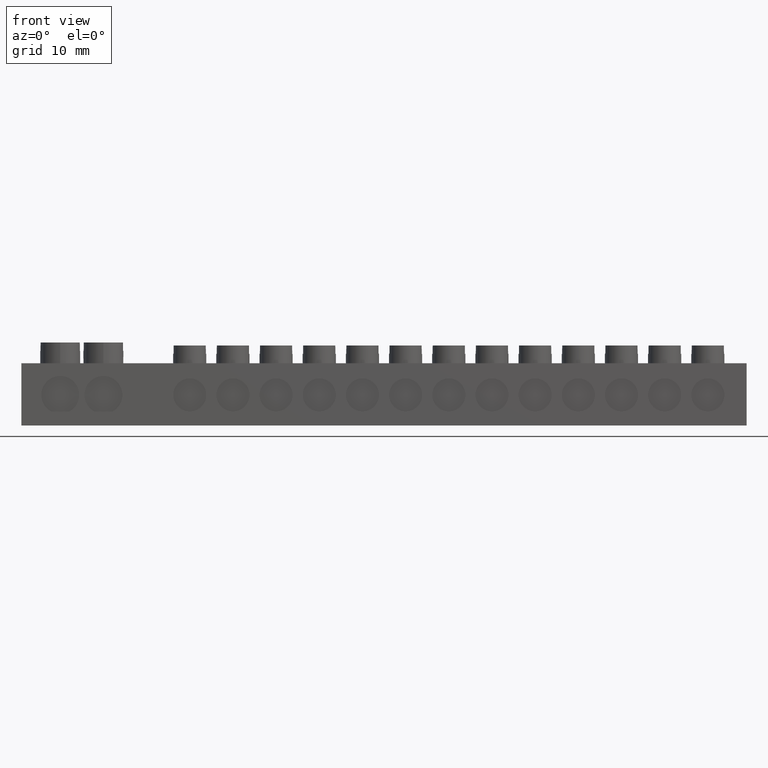
[diagram: clean part render]
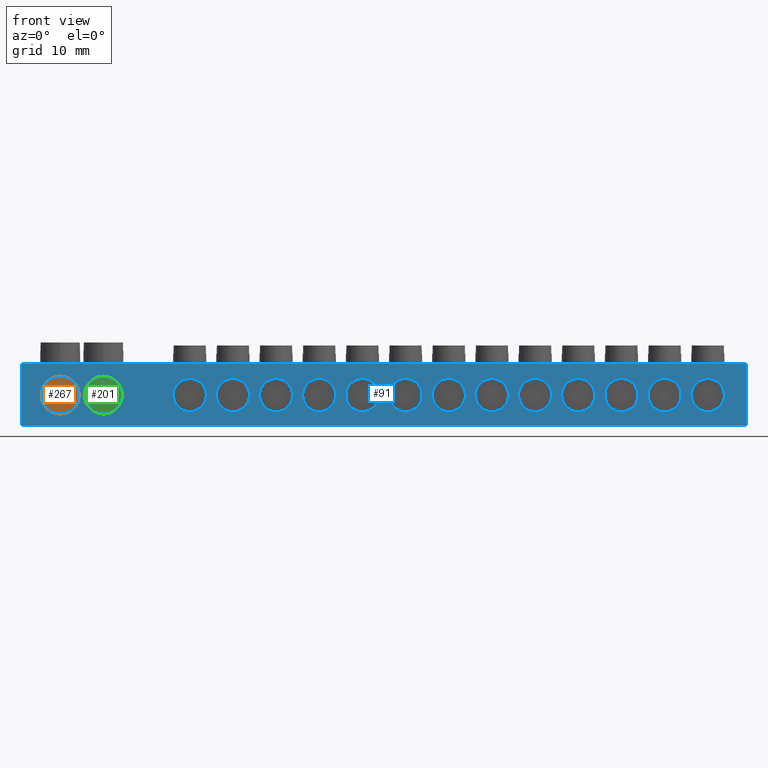
[diagram: same view with three faces highlighted in distinct colors, each labeled with its STEP entity id]
A machine part, front view with three faces highlighted in distinct colors.
Their STEP definitions:

[orange] entity #267 — the highlighted planar face has unit normal (0, -1, 0).
#267 = ADVANCED_FACE ( 'NONE', ( #5713 ), #5711, .T. ) ;
#352 = EDGE_CURVE ( 'NONE', #3519, #3563, #9379, .T. ) ;
#2890 = CIRCLE ( 'NONE', #2921, 2.749999999999998200 ) ;
#2921 = AXIS2_PLACEMENT_3D ( 'NONE', #8929, #8913, #8914 ) ;
#3450 = EDGE_CURVE ( 'NONE', #3563, #3519, #2890, .T. ) ;
#3519 = VERTEX_POINT ( 'NONE', #9056 ) ;
#3563 = VERTEX_POINT ( 'NONE', #8005 ) ;
#3770 = ORIENTED_EDGE ( 'NONE', *, *, #3450, .T. ) ;
#3780 = ORIENTED_EDGE ( 'NONE', *, *, #352, .T. ) ;
#4279 = EDGE_LOOP ( 'NONE', ( #3770, #3780 ) ) ;
#5694 = DIRECTION ( 'NONE',  ( 0.0000000000000000000, -0.0000000000000000000, -1.000000000000000000 ) ) ;
#5700 = DIRECTION ( 'NONE',  ( 0.0000000000000000000, -1.000000000000000000, 0.0000000000000000000 ) ) ;
#5711 = PLANE ( 'NONE',  #9264 ) ;
#5713 = FACE_OUTER_BOUND ( 'NONE', #4279, .T. ) ;
#5732 = CARTESIAN_POINT ( 'NONE',  ( 0.5000000000000000000, 0.5000000000000000000, 0.5000000000000000000 ) ) ;
#5892 = DIRECTION ( 'NONE',  ( -0.0000000000000000000, -1.000000000000000000, -0.0000000000000000000 ) ) ;
#5901 = DIRECTION ( 'NONE',  ( 0.0000000000000000000, 0.0000000000000000000, -1.000000000000000000 ) ) ;
#5906 = CARTESIAN_POINT ( 'NONE',  ( 5.325000000000000200, 0.5000000000000004400, 4.399999999999999500 ) ) ;
#8005 = CARTESIAN_POINT ( 'NONE',  ( 5.325000000000000200, 0.5000000000000004400, 1.650000000000001200 ) ) ;
#8913 = DIRECTION ( 'NONE',  ( -0.0000000000000000000, -1.000000000000000000, -0.0000000000000000000 ) ) ;
#8914 = DIRECTION ( 'NONE',  ( 0.0000000000000000000, 0.0000000000000000000, -1.000000000000000000 ) ) ;
#8929 = CARTESIAN_POINT ( 'NONE',  ( 5.325000000000000200, 0.5000000000000004400, 4.399999999999999500 ) ) ;
#9056 = CARTESIAN_POINT ( 'NONE',  ( 5.325000000000000200, 0.5000000000000004400, 7.149999999999997700 ) ) ;
#9264 = AXIS2_PLACEMENT_3D ( 'NONE', #5732, #5700, #5694 ) ;
#9346 = AXIS2_PLACEMENT_3D ( 'NONE', #5906, #5892, #5901 ) ;
#9379 = CIRCLE ( 'NONE', #9346, 2.749999999999998200 ) ;

[blue] entity #91 — the highlighted planar face has unit normal (0, 1, 0).
#91 = ADVANCED_FACE ( 'NONE', ( #1363, #1327, #1376, #1339, #1332, #1343, #1344, #1367, #1325, #1375, #1366, #1369, #1338, #1377, #1323, #1324 ), #1346, .F. ) ;
#350 = EDGE_CURVE ( 'NONE', #3523, #3564, #9347, .T. ) ;
#356 = EDGE_CURVE ( 'NONE', #537, #564, #9330, .T. ) ;
#373 = EDGE_CURVE ( 'NONE', #3548, #3512, #9324, .T. ) ;
#375 = EDGE_CURVE ( 'NONE', #3526, #3525, #9359, .T. ) ;
#379 = EDGE_CURVE ( 'NONE', #3534, #472, #9371, .T. ) ;
#383 = EDGE_CURVE ( 'NONE', #550, #569, #9376, .T. ) ;
#389 = EDGE_CURVE ( 'NONE', #561, #467, #9361, .T. ) ;
#398 = EDGE_CURVE ( 'NONE', #3514, #3517, #9402, .T. ) ;
#402 = EDGE_CURVE ( 'NONE', #534, #522, #9387, .T. ) ;
#416 = EDGE_CURVE ( 'NONE', #512, #471, #9396, .T. ) ;
#434 = EDGE_CURVE ( 'NONE', #538, #453, #9425, .T. ) ;
#436 = EDGE_CURVE ( 'NONE', #504, #456, #9478, .T. ) ;
#440 = EDGE_CURVE ( 'NONE', #455, #501, #9486, .T. ) ;
#453 = VERTEX_POINT ( 'NONE', #6214 ) ;
#455 = VERTEX_POINT ( 'NONE', #6202 ) ;
#456 = VERTEX_POINT ( 'NONE', #6215 ) ;
#457 = VERTEX_POINT ( 'NONE', #6198 ) ;
#459 = VERTEX_POINT ( 'NONE', #6203 ) ;
#467 = VERTEX_POINT ( 'NONE', #6218 ) ;
#471 = VERTEX_POINT ( 'NONE', #6235 ) ;
#472 = VERTEX_POINT ( 'NONE', #6237 ) ;
#475 = VERTEX_POINT ( 'NONE', #6239 ) ;
#501 = VERTEX_POINT ( 'NONE', #9140 ) ;
#504 = VERTEX_POINT ( 'NONE', #9119 ) ;
#512 = VERTEX_POINT ( 'NONE', #9125 ) ;
#522 = VERTEX_POINT ( 'NONE', #9127 ) ;
#532 = VERTEX_POINT ( 'NONE', #9147 ) ;
#534 = VERTEX_POINT ( 'NONE', #9158 ) ;
#535 = VERTEX_POINT ( 'NONE', #8031 ) ;
#537 = VERTEX_POINT ( 'NONE', #8060 ) ;
#538 = VERTEX_POINT ( 'NONE', #8036 ) ;
#550 = VERTEX_POINT ( 'NONE', #8048 ) ;
#559 = VERTEX_POINT ( 'NONE', #8073 ) ;
#561 = VERTEX_POINT ( 'NONE', #8029 ) ;
#564 = VERTEX_POINT ( 'NONE', #8074 ) ;
#569 = VERTEX_POINT ( 'NONE', #8067 ) ;
#574 = VERTEX_POINT ( 'NONE', #8030 ) ;
#1323 = FACE_BOUND ( 'NONE', #4310, .T. ) ;
#1324 = FACE_BOUND ( 'NONE', #4295, .T. ) ;
#1325 = FACE_BOUND ( 'NONE', #4386, .T. ) ;
#1327 = FACE_BOUND ( 'NONE', #4309, .T. ) ;
#1332 = FACE_BOUND ( 'NONE', #4353, .T. ) ;
#1338 = FACE_BOUND ( 'NONE', #4323, .T. ) ;
#1339 = FACE_BOUND ( 'NONE', #4316, .T. ) ;
#1343 = FACE_BOUND ( 'NONE', #4391, .T. ) ;
#1344 = FACE_BOUND ( 'NONE', #4381, .T. ) ;
#1346 = PLANE ( 'NONE',  #9073 ) ;
#1347 = CARTESIAN_POINT ( 'NONE',  ( 0.0000000000000000000, 0.0000000000000000000, 9.000000000000001800 ) ) ;
#1348 = DIRECTION ( 'NONE',  ( 0.0000000000000000000, 1.000000000000000000, 0.0000000000000000000 ) ) ;
#1354 = DIRECTION ( 'NONE',  ( 0.0000000000000000000, -0.0000000000000000000, 1.000000000000000000 ) ) ;
#1363 = FACE_OUTER_BOUND ( 'NONE', #4364, .T. ) ;
#1366 = FACE_BOUND ( 'NONE', #4389, .T. ) ;
#1367 = FACE_BOUND ( 'NONE', #4393, .T. ) ;
#1369 = FACE_BOUND ( 'NONE', #4311, .T. ) ;
#1375 = FACE_BOUND ( 'NONE', #4355, .T. ) ;
#1376 = FACE_BOUND ( 'NONE', #4308, .T. ) ;
#1377 = FACE_BOUND ( 'NONE', #4366, .T. ) ;
#1762 = VERTEX_POINT ( 'NONE', #8394 ) ;
#2167 = AXIS2_PLACEMENT_3D ( 'NONE', #9652, #9655, #9645 ) ;
#2180 = VECTOR ( 'NONE', #9647, 1000.000000000000000 ) ;
#2183 = CIRCLE ( 'NONE', #2167, 2.400000000000000800 ) ;
#2198 = AXIS2_PLACEMENT_3D ( 'NONE', #9732, #9726, #9727 ) ;
#2200 = CIRCLE ( 'NONE', #2208, 2.400000000000000800 ) ;
#2207 = VECTOR ( 'NONE', #9759, 1000.000000000000000 ) ;
#2208 = AXIS2_PLACEMENT_3D ( 'NONE', #9718, #9705, #9722 ) ;
#2211 = CIRCLE ( 'NONE', #2243, 2.400000000000000800 ) ;
#2212 = CIRCLE ( 'NONE', #2244, 2.400000000000000800 ) ;
#2216 = CIRCLE ( 'NONE', #2217, 2.400000000000000800 ) ;
#2217 = AXIS2_PLACEMENT_3D ( 'NONE', #9773, #9774, #9775 ) ;
#2222 = AXIS2_PLACEMENT_3D ( 'NONE', #9719, #9721, #9708 ) ;
#2223 = CIRCLE ( 'NONE', #2225, 2.400000000000000800 ) ;
#2225 = AXIS2_PLACEMENT_3D ( 'NONE', #9714, #9703, #9696 ) ;
#2232 = AXIS2_PLACEMENT_3D ( 'NONE', #9739, #9740, #9742 ) ;
#2233 = VECTOR ( 'NONE', #9725, 1000.000000000000000 ) ;
#2236 = CIRCLE ( 'NONE', #2198, 2.400000000000000800 ) ;
#2243 = AXIS2_PLACEMENT_3D ( 'NONE', #9689, #9673, #9688 ) ;
#2244 = AXIS2_PLACEMENT_3D ( 'NONE', #9770, #9766, #9771 ) ;
#2246 = CIRCLE ( 'NONE', #2232, 2.400000000000000800 ) ;
#2249 = CIRCLE ( 'NONE', #2222, 2.400000000000000800 ) ;
#2251 = VECTOR ( 'NONE', #9815, 1000.000000000000000 ) ;
#2266 = AXIS2_PLACEMENT_3D ( 'NONE', #9811, #9799, #9785 ) ;
#2268 = AXIS2_PLACEMENT_3D ( 'NONE', #9828, #9840, #9830 ) ;
#2271 = CIRCLE ( 'NONE', #2277, 2.400000000000000800 ) ;
#2276 = AXIS2_PLACEMENT_3D ( 'NONE', #9796, #9788, #9806 ) ;
#2277 = AXIS2_PLACEMENT_3D ( 'NONE', #9825, #9833, #9838 ) ;
#2280 = AXIS2_PLACEMENT_3D ( 'NONE', #9818, #9819, #9814 ) ;
#2285 = CIRCLE ( 'NONE', #2266, 2.749999999999998200 ) ;
#2286 = CIRCLE ( 'NONE', #2280, 2.400000000000000800 ) ;
#2293 = CIRCLE ( 'NONE', #2276, 2.400000000000000800 ) ;
#2303 = AXIS2_PLACEMENT_3D ( 'NONE', #9807, #9782, #9813 ) ;
#2306 = CIRCLE ( 'NONE', #2303, 2.400000000000000800 ) ;
#2307 = CIRCLE ( 'NONE', #2268, 2.749999999999998200 ) ;
#3311 = CIRCLE ( 'NONE', #3324, 2.400000000000000800 ) ;
#3312 = CIRCLE ( 'NONE', #3330, 2.400000000000000800 ) ;
#3324 = AXIS2_PLACEMENT_3D ( 'NONE', #6656, #6683, #6672 ) ;
#3330 = AXIS2_PLACEMENT_3D ( 'NONE', #6658, #6670, #6659 ) ;
#3512 = VERTEX_POINT ( 'NONE', #9063 ) ;
#3514 = VERTEX_POINT ( 'NONE', #9065 ) ;
#3517 = VERTEX_POINT ( 'NONE', #9061 ) ;
#3523 = VERTEX_POINT ( 'NONE', #8573 ) ;
#3525 = VERTEX_POINT ( 'NONE', #8007 ) ;
#3526 = VERTEX_POINT ( 'NONE', #7992 ) ;
#3534 = VERTEX_POINT ( 'NONE', #8001 ) ;
#3548 = VERTEX_POINT ( 'NONE', #7964 ) ;
#3564 = VERTEX_POINT ( 'NONE', #8003 ) ;
#3848 = ORIENTED_EDGE ( 'NONE', *, *, #6991, .F. ) ;
#3849 = ORIENTED_EDGE ( 'NONE', *, *, #373, .F. ) ;
#3850 = ORIENTED_EDGE ( 'NONE', *, *, #7003, .F. ) ;
#3852 = ORIENTED_EDGE ( 'NONE', *, *, #6999, .F. ) ;
#3853 = ORIENTED_EDGE ( 'NONE', *, *, #6994, .F. ) ;
#3854 = ORIENTED_EDGE ( 'NONE', *, *, #6981, .F. ) ;
#3892 = ORIENTED_EDGE ( 'NONE', *, *, #5205, .F. ) ;
#3893 = ORIENTED_EDGE ( 'NONE', *, *, #7011, .F. ) ;
#3895 = ORIENTED_EDGE ( 'NONE', *, *, #5203, .F. ) ;
#3897 = ORIENTED_EDGE ( 'NONE', *, *, #389, .F. ) ;
#3903 = ORIENTED_EDGE ( 'NONE', *, *, #356, .F. ) ;
#3904 = ORIENTED_EDGE ( 'NONE', *, *, #6966, .F. ) ;
#3909 = ORIENTED_EDGE ( 'NONE', *, *, #7023, .F. ) ;
#3910 = ORIENTED_EDGE ( 'NONE', *, *, #6967, .F. ) ;
#3911 = ORIENTED_EDGE ( 'NONE', *, *, #7016, .F. ) ;
#3915 = ORIENTED_EDGE ( 'NONE', *, *, #375, .F. ) ;
#3916 = ORIENTED_EDGE ( 'NONE', *, *, #402, .F. ) ;
#3921 = ORIENTED_EDGE ( 'NONE', *, *, #350, .F. ) ;
#3924 = ORIENTED_EDGE ( 'NONE', *, *, #440, .F. ) ;
#3925 = ORIENTED_EDGE ( 'NONE', *, *, #7012, .F. ) ;
#3927 = ORIENTED_EDGE ( 'NONE', *, *, #7018, .F. ) ;
#3928 = ORIENTED_EDGE ( 'NONE', *, *, #383, .F. ) ;
#3930 = ORIENTED_EDGE ( 'NONE', *, *, #6977, .F. ) ;
#3932 = ORIENTED_EDGE ( 'NONE', *, *, #436, .F. ) ;
#3933 = ORIENTED_EDGE ( 'NONE', *, *, #398, .F. ) ;
#3934 = ORIENTED_EDGE ( 'NONE', *, *, #6984, .F. ) ;
#3937 = ORIENTED_EDGE ( 'NONE', *, *, #379, .F. ) ;
#3938 = ORIENTED_EDGE ( 'NONE', *, *, #416, .F. ) ;
#3939 = ORIENTED_EDGE ( 'NONE', *, *, #6975, .F. ) ;
#3940 = ORIENTED_EDGE ( 'NONE', *, *, #7024, .F. ) ;
#3943 = ORIENTED_EDGE ( 'NONE', *, *, #434, .F. ) ;
#3944 = ORIENTED_EDGE ( 'NONE', *, *, #7005, .F. ) ;
#3946 = ORIENTED_EDGE ( 'NONE', *, *, #6978, .F. ) ;
#3949 = ORIENTED_EDGE ( 'NONE', *, *, #7017, .F. ) ;
#4295 = EDGE_LOOP ( 'NONE', ( #3925, #3916 ) ) ;
#4308 = EDGE_LOOP ( 'NONE', ( #3911, #3933 ) ) ;
#4309 = EDGE_LOOP ( 'NONE', ( #3940, #3915 ) ) ;
#4310 = EDGE_LOOP ( 'NONE', ( #3930, #3895 ) ) ;
#4311 = EDGE_LOOP ( 'NONE', ( #3909, #3924 ) ) ;
#4316 = EDGE_LOOP ( 'NONE', ( #3853, #3921 ) ) ;
#4323 = EDGE_LOOP ( 'NONE', ( #3910, #3943 ) ) ;
#4353 = EDGE_LOOP ( 'NONE', ( #3934, #3849 ) ) ;
#4355 = EDGE_LOOP ( 'NONE', ( #3944, #3932 ) ) ;
#4364 = EDGE_LOOP ( 'NONE', ( #3949, #3904, #3946, #3852 ) ) ;
#4366 = EDGE_LOOP ( 'NONE', ( #3939, #3892 ) ) ;
#4381 = EDGE_LOOP ( 'NONE', ( #3893, #3903 ) ) ;
#4386 = EDGE_LOOP ( 'NONE', ( #3850, #3897 ) ) ;
#4389 = EDGE_LOOP ( 'NONE', ( #3854, #3938 ) ) ;
#4391 = EDGE_LOOP ( 'NONE', ( #3848, #3937 ) ) ;
#4393 = EDGE_LOOP ( 'NONE', ( #3927, #3928 ) ) ;
#5203 = EDGE_CURVE ( 'NONE', #559, #535, #3311, .T. ) ;
#5205 = EDGE_CURVE ( 'NONE', #532, #574, #3312, .T. ) ;
#5886 = DIRECTION ( 'NONE',  ( 0.0000000000000000000, 0.0000000000000000000, -1.000000000000000000 ) ) ;
#5888 = DIRECTION ( 'NONE',  ( 0.0000000000000000000, 0.0000000000000000000, -1.000000000000000000 ) ) ;
#5891 = CARTESIAN_POINT ( 'NONE',  ( 99.07500000000001700, 0.0000000000000000000, 4.399999999999999500 ) ) ;
#5897 = DIRECTION ( 'NONE',  ( -0.0000000000000000000, -1.000000000000000000, -0.0000000000000000000 ) ) ;
#5902 = CARTESIAN_POINT ( 'NONE',  ( 80.32500000000000300, 0.0000000000000000000, 4.399999999999955900 ) ) ;
#5907 = DIRECTION ( 'NONE',  ( -0.0000000000000000000, -1.000000000000000000, -0.0000000000000000000 ) ) ;
#5982 = DIRECTION ( 'NONE',  ( 0.0000000000000000000, 0.0000000000000000000, -1.000000000000000000 ) ) ;
#5986 = DIRECTION ( 'NONE',  ( -0.0000000000000000000, -1.000000000000000000, -0.0000000000000000000 ) ) ;
#5991 = DIRECTION ( 'NONE',  ( -0.0000000000000000000, -1.000000000000000000, -0.0000000000000000000 ) ) ;
#5992 = DIRECTION ( 'NONE',  ( -0.0000000000000000000, -1.000000000000000000, -0.0000000000000000000 ) ) ;
#5993 = DIRECTION ( 'NONE',  ( 0.0000000000000000000, 0.0000000000000000000, -1.000000000000000000 ) ) ;
#6001 = CARTESIAN_POINT ( 'NONE',  ( 5.325000000000000200, 0.0000000000000000000, 4.399999999999999500 ) ) ;
#6005 = CARTESIAN_POINT ( 'NONE',  ( 86.57500000000001700, 0.0000000000000000000, 4.399999999999970200 ) ) ;
#6006 = DIRECTION ( 'NONE',  ( 0.0000000000000000000, 0.0000000000000000000, -1.000000000000000000 ) ) ;
#6007 = CARTESIAN_POINT ( 'NONE',  ( 74.07500000000001700, 0.0000000000000000000, 4.399999999999940800 ) ) ;
#6008 = DIRECTION ( 'NONE',  ( -0.0000000000000000000, -1.000000000000000000, -0.0000000000000000000 ) ) ;
#6012 = DIRECTION ( 'NONE',  ( 0.0000000000000000000, 0.0000000000000000000, -1.000000000000000000 ) ) ;
#6016 = CARTESIAN_POINT ( 'NONE',  ( 92.82500000000001700, 0.0000000000000000000, 4.399999999999984400 ) ) ;
#6028 = DIRECTION ( 'NONE',  ( -0.0000000000000000000, -1.000000000000000000, -0.0000000000000000000 ) ) ;
#6048 = CARTESIAN_POINT ( 'NONE',  ( 67.82500000000001700, 0.0000000000000000000, 4.399999999999926600 ) ) ;
#6049 = DIRECTION ( 'NONE',  ( 0.0000000000000000000, 0.0000000000000000000, -1.000000000000000000 ) ) ;
#6063 = DIRECTION ( 'NONE',  ( -0.0000000000000000000, -1.000000000000000000, -0.0000000000000000000 ) ) ;
#6065 = CARTESIAN_POINT ( 'NONE',  ( 11.57500000000000300, 0.0000000000000000000, 4.399999999999999500 ) ) ;
#6066 = DIRECTION ( 'NONE',  ( 0.0000000000000000000, 0.0000000000000000000, -1.000000000000000000 ) ) ;
#6084 = DIRECTION ( 'NONE',  ( -0.0000000000000000000, -1.000000000000000000, -0.0000000000000000000 ) ) ;
#6090 = CARTESIAN_POINT ( 'NONE',  ( 24.07500000000002800, 0.0000000000000000000, 4.399999999999825400 ) ) ;
#6092 = DIRECTION ( 'NONE',  ( 0.0000000000000000000, 0.0000000000000000000, -1.000000000000000000 ) ) ;
#6109 = CARTESIAN_POINT ( 'NONE',  ( 55.32500000000001700, 0.0000000000000000000, 4.399999999999898200 ) ) ;
#6139 = DIRECTION ( 'NONE',  ( -0.0000000000000000000, -1.000000000000000000, -0.0000000000000000000 ) ) ;
#6142 = DIRECTION ( 'NONE',  ( 0.0000000000000000000, 0.0000000000000000000, -1.000000000000000000 ) ) ;
#6161 = CARTESIAN_POINT ( 'NONE',  ( 42.82500000000002400, 0.0000000000000000000, 4.399999999999868000 ) ) ;
#6170 = DIRECTION ( 'NONE',  ( 0.0000000000000000000, 0.0000000000000000000, -1.000000000000000000 ) ) ;
#6176 = DIRECTION ( 'NONE',  ( 0.0000000000000000000, 0.0000000000000000000, -1.000000000000000000 ) ) ;
#6178 = CARTESIAN_POINT ( 'NONE',  ( 49.07500000000003100, 0.0000000000000000000, 4.399999999999883100 ) ) ;
#6179 = DIRECTION ( 'NONE',  ( -0.0000000000000000000, -1.000000000000000000, -0.0000000000000000000 ) ) ;
#6187 = DIRECTION ( 'NONE',  ( -0.0000000000000000000, -1.000000000000000000, -0.0000000000000000000 ) ) ;
#6192 = CARTESIAN_POINT ( 'NONE',  ( 61.57500000000001700, 0.0000000000000000000, 4.399999999999911500 ) ) ;
#6193 = DIRECTION ( 'NONE',  ( -0.0000000000000000000, -1.000000000000000000, -0.0000000000000000000 ) ) ;
#6198 = CARTESIAN_POINT ( 'NONE',  ( 104.7000000000000000, 0.0000000000000000000, 0.0000000000000000000 ) ) ;
#6202 = CARTESIAN_POINT ( 'NONE',  ( 49.07500000000003100, 0.0000000000000000000, 6.799999999999884400 ) ) ;
#6203 = CARTESIAN_POINT ( 'NONE',  ( -0.2999999999999999900, 0.0000000000000000000, 0.0000000000000000000 ) ) ;
#6214 = CARTESIAN_POINT ( 'NONE',  ( 42.82500000000002400, 0.0000000000000000000, 1.999999999999867700 ) ) ;
#6215 = CARTESIAN_POINT ( 'NONE',  ( 61.57500000000001700, 0.0000000000000000000, 1.999999999999911200 ) ) ;
#6218 = CARTESIAN_POINT ( 'NONE',  ( 67.82500000000001700, 0.0000000000000000000, 1.999999999999925800 ) ) ;
#6235 = CARTESIAN_POINT ( 'NONE',  ( 55.32500000000001700, 0.0000000000000000000, 1.999999999999897200 ) ) ;
#6237 = CARTESIAN_POINT ( 'NONE',  ( 86.57500000000001700, 0.0000000000000000000, 1.999999999999969400 ) ) ;
#6239 = CARTESIAN_POINT ( 'NONE',  ( -0.2999999999999999900, 0.0000000000000000000, 9.000000000000001800 ) ) ;
#6241 = DIRECTION ( 'NONE',  ( 0.0000000000000000000, 0.0000000000000000000, -1.000000000000000000 ) ) ;
#6656 = CARTESIAN_POINT ( 'NONE',  ( 30.32500000000003100, 0.0000000000000000000, 4.399999999999839600 ) ) ;
#6658 = CARTESIAN_POINT ( 'NONE',  ( 36.57500000000002400, 0.0000000000000000000, 4.399999999999853800 ) ) ;
#6659 = DIRECTION ( 'NONE',  ( 0.0000000000000000000, 0.0000000000000000000, -1.000000000000000000 ) ) ;
#6670 = DIRECTION ( 'NONE',  ( -0.0000000000000000000, -1.000000000000000000, -0.0000000000000000000 ) ) ;
#6672 = DIRECTION ( 'NONE',  ( 0.0000000000000000000, 0.0000000000000000000, -1.000000000000000000 ) ) ;
#6683 = DIRECTION ( 'NONE',  ( -0.0000000000000000000, -1.000000000000000000, -0.0000000000000000000 ) ) ;
#6966 = EDGE_CURVE ( 'NONE', #475, #1762, #9663, .T. ) ;
#6967 = EDGE_CURVE ( 'NONE', #453, #538, #2183, .T. ) ;
#6975 = EDGE_CURVE ( 'NONE', #574, #532, #2211, .T. ) ;
#6977 = EDGE_CURVE ( 'NONE', #535, #559, #2249, .T. ) ;
#6978 = EDGE_CURVE ( 'NONE', #459, #475, #9691, .T. ) ;
#6981 = EDGE_CURVE ( 'NONE', #471, #512, #2223, .T. ) ;
#6984 = EDGE_CURVE ( 'NONE', #3512, #3548, #2200, .T. ) ;
#6991 = EDGE_CURVE ( 'NONE', #472, #3534, #2236, .T. ) ;
#6994 = EDGE_CURVE ( 'NONE', #3564, #3523, #2246, .T. ) ;
#6999 = EDGE_CURVE ( 'NONE', #457, #459, #9753, .T. ) ;
#7003 = EDGE_CURVE ( 'NONE', #467, #561, #2212, .T. ) ;
#7005 = EDGE_CURVE ( 'NONE', #456, #504, #2216, .T. ) ;
#7011 = EDGE_CURVE ( 'NONE', #564, #537, #2293, .T. ) ;
#7012 = EDGE_CURVE ( 'NONE', #522, #534, #2306, .T. ) ;
#7016 = EDGE_CURVE ( 'NONE', #3517, #3514, #2285, .T. ) ;
#7017 = EDGE_CURVE ( 'NONE', #1762, #457, #9790, .T. ) ;
#7018 = EDGE_CURVE ( 'NONE', #569, #550, #2286, .T. ) ;
#7023 = EDGE_CURVE ( 'NONE', #501, #455, #2271, .T. ) ;
#7024 = EDGE_CURVE ( 'NONE', #3525, #3526, #2307, .T. ) ;
#7964 = CARTESIAN_POINT ( 'NONE',  ( 92.82500000000001700, 0.0000000000000000000, 6.799999999999984700 ) ) ;
#7992 = CARTESIAN_POINT ( 'NONE',  ( 5.325000000000000200, 0.0000000000000000000, 7.149999999999997700 ) ) ;
#8001 = CARTESIAN_POINT ( 'NONE',  ( 86.57500000000001700, 0.0000000000000000000, 6.799999999999971400 ) ) ;
#8003 = CARTESIAN_POINT ( 'NONE',  ( 99.07500000000001700, 0.0000000000000000000, 1.999999999999998700 ) ) ;
#8007 = CARTESIAN_POINT ( 'NONE',  ( 5.325000000000000200, 0.0000000000000000000, 1.650000000000001200 ) ) ;
#8029 = CARTESIAN_POINT ( 'NONE',  ( 67.82500000000001700, 0.0000000000000000000, 6.799999999999927900 ) ) ;
#8030 = CARTESIAN_POINT ( 'NONE',  ( 36.57500000000002400, 0.0000000000000000000, 1.999999999999853000 ) ) ;
#8031 = CARTESIAN_POINT ( 'NONE',  ( 30.32500000000003100, 0.0000000000000000000, 1.999999999999839200 ) ) ;
#8036 = CARTESIAN_POINT ( 'NONE',  ( 42.82500000000002400, 0.0000000000000000000, 6.799999999999868400 ) ) ;
#8048 = CARTESIAN_POINT ( 'NONE',  ( 74.07500000000001700, 0.0000000000000000000, 6.799999999999941200 ) ) ;
#8060 = CARTESIAN_POINT ( 'NONE',  ( 80.32500000000000300, 0.0000000000000000000, 6.799999999999957200 ) ) ;
#8067 = CARTESIAN_POINT ( 'NONE',  ( 74.07500000000001700, 0.0000000000000000000, 1.999999999999940700 ) ) ;
#8073 = CARTESIAN_POINT ( 'NONE',  ( 30.32500000000003100, 0.0000000000000000000, 6.799999999999840800 ) ) ;
#8074 = CARTESIAN_POINT ( 'NONE',  ( 80.32500000000000300, 0.0000000000000000000, 1.999999999999955400 ) ) ;
#8394 = CARTESIAN_POINT ( 'NONE',  ( 104.7000000000000000, 0.0000000000000000000, 9.000000000000001800 ) ) ;
#8573 = CARTESIAN_POINT ( 'NONE',  ( 99.07500000000001700, 0.0000000000000000000, 6.800000000000000700 ) ) ;
#9061 = CARTESIAN_POINT ( 'NONE',  ( 11.57500000000000300, 0.0000000000000000000, 1.650000000000001200 ) ) ;
#9063 = CARTESIAN_POINT ( 'NONE',  ( 92.82500000000001700, 0.0000000000000000000, 1.999999999999984000 ) ) ;
#9065 = CARTESIAN_POINT ( 'NONE',  ( 11.57500000000000300, 0.0000000000000000000, 7.149999999999997700 ) ) ;
#9073 = AXIS2_PLACEMENT_3D ( 'NONE', #1347, #1348, #1354 ) ;
#9119 = CARTESIAN_POINT ( 'NONE',  ( 61.57500000000001700, 0.0000000000000000000, 6.799999999999911900 ) ) ;
#9125 = CARTESIAN_POINT ( 'NONE',  ( 55.32500000000001700, 0.0000000000000000000, 6.799999999999898600 ) ) ;
#9127 = CARTESIAN_POINT ( 'NONE',  ( 24.07500000000002800, 0.0000000000000000000, 1.999999999999824400 ) ) ;
#9140 = CARTESIAN_POINT ( 'NONE',  ( 49.07500000000003100, 0.0000000000000000000, 1.999999999999882500 ) ) ;
#9147 = CARTESIAN_POINT ( 'NONE',  ( 36.57500000000002400, 0.0000000000000000000, 6.799999999999855000 ) ) ;
#9158 = CARTESIAN_POINT ( 'NONE',  ( 24.07500000000002800, 0.0000000000000000000, 6.799999999999824900 ) ) ;
#9324 = CIRCLE ( 'NONE', #9327, 2.400000000000000800 ) ;
#9327 = AXIS2_PLACEMENT_3D ( 'NONE', #6016, #5986, #5982 ) ;
#9329 = AXIS2_PLACEMENT_3D ( 'NONE', #6005, #5992, #6006 ) ;
#9330 = CIRCLE ( 'NONE', #9345, 2.400000000000000800 ) ;
#9337 = AXIS2_PLACEMENT_3D ( 'NONE', #6001, #5991, #5993 ) ;
#9343 = AXIS2_PLACEMENT_3D ( 'NONE', #5891, #5897, #5886 ) ;
#9345 = AXIS2_PLACEMENT_3D ( 'NONE', #5902, #5907, #5888 ) ;
#9347 = CIRCLE ( 'NONE', #9343, 2.400000000000000800 ) ;
#9356 = AXIS2_PLACEMENT_3D ( 'NONE', #6007, #6008, #6012 ) ;
#9359 = CIRCLE ( 'NONE', #9337, 2.749999999999998200 ) ;
#9361 = CIRCLE ( 'NONE', #9364, 2.400000000000000800 ) ;
#9364 = AXIS2_PLACEMENT_3D ( 'NONE', #6048, #6028, #6049 ) ;
#9371 = CIRCLE ( 'NONE', #9329, 2.400000000000000800 ) ;
#9376 = CIRCLE ( 'NONE', #9356, 2.400000000000000800 ) ;
#9387 = CIRCLE ( 'NONE', #9398, 2.400000000000000800 ) ;
#9396 = CIRCLE ( 'NONE', #9419, 2.400000000000000800 ) ;
#9398 = AXIS2_PLACEMENT_3D ( 'NONE', #6090, #6084, #6092 ) ;
#9402 = CIRCLE ( 'NONE', #9447, 2.749999999999998200 ) ;
#9417 = AXIS2_PLACEMENT_3D ( 'NONE', #6161, #6187, #6176 ) ;
#9419 = AXIS2_PLACEMENT_3D ( 'NONE', #6109, #6139, #6142 ) ;
#9425 = CIRCLE ( 'NONE', #9417, 2.400000000000000800 ) ;
#9447 = AXIS2_PLACEMENT_3D ( 'NONE', #6065, #6063, #6066 ) ;
#9456 = AXIS2_PLACEMENT_3D ( 'NONE', #6192, #6193, #6170 ) ;
#9469 = AXIS2_PLACEMENT_3D ( 'NONE', #6178, #6179, #6241 ) ;
#9478 = CIRCLE ( 'NONE', #9456, 2.400000000000000800 ) ;
#9486 = CIRCLE ( 'NONE', #9469, 2.400000000000000800 ) ;
#9645 = DIRECTION ( 'NONE',  ( 0.0000000000000000000, 0.0000000000000000000, -1.000000000000000000 ) ) ;
#9646 = CARTESIAN_POINT ( 'NONE',  ( 0.0000000000000000000, 0.0000000000000000000, 9.000000000000001800 ) ) ;
#9647 = DIRECTION ( 'NONE',  ( 1.000000000000000000, 0.0000000000000000000, -0.0000000000000000000 ) ) ;
#9652 = CARTESIAN_POINT ( 'NONE',  ( 42.82500000000002400, 0.0000000000000000000, 4.399999999999868000 ) ) ;
#9655 = DIRECTION ( 'NONE',  ( -0.0000000000000000000, -1.000000000000000000, -0.0000000000000000000 ) ) ;
#9663 = LINE ( 'NONE', #9646, #2180 ) ;
#9673 = DIRECTION ( 'NONE',  ( -0.0000000000000000000, -1.000000000000000000, -0.0000000000000000000 ) ) ;
#9678 = CARTESIAN_POINT ( 'NONE',  ( -0.2999999999999999900, 0.0000000000000000000, 9.000000000000001800 ) ) ;
#9688 = DIRECTION ( 'NONE',  ( 0.0000000000000000000, 0.0000000000000000000, -1.000000000000000000 ) ) ;
#9689 = CARTESIAN_POINT ( 'NONE',  ( 36.57500000000002400, 0.0000000000000000000, 4.399999999999853800 ) ) ;
#9691 = LINE ( 'NONE', #9678, #2233 ) ;
#9696 = DIRECTION ( 'NONE',  ( 0.0000000000000000000, 0.0000000000000000000, -1.000000000000000000 ) ) ;
#9703 = DIRECTION ( 'NONE',  ( -0.0000000000000000000, -1.000000000000000000, -0.0000000000000000000 ) ) ;
#9705 = DIRECTION ( 'NONE',  ( -0.0000000000000000000, -1.000000000000000000, -0.0000000000000000000 ) ) ;
#9708 = DIRECTION ( 'NONE',  ( 0.0000000000000000000, 0.0000000000000000000, -1.000000000000000000 ) ) ;
#9714 = CARTESIAN_POINT ( 'NONE',  ( 55.32500000000001700, 0.0000000000000000000, 4.399999999999898200 ) ) ;
#9718 = CARTESIAN_POINT ( 'NONE',  ( 92.82500000000001700, 0.0000000000000000000, 4.399999999999984400 ) ) ;
#9719 = CARTESIAN_POINT ( 'NONE',  ( 30.32500000000003100, 0.0000000000000000000, 4.399999999999839600 ) ) ;
#9721 = DIRECTION ( 'NONE',  ( -0.0000000000000000000, -1.000000000000000000, -0.0000000000000000000 ) ) ;
#9722 = DIRECTION ( 'NONE',  ( 0.0000000000000000000, 0.0000000000000000000, -1.000000000000000000 ) ) ;
#9725 = DIRECTION ( 'NONE',  ( 0.0000000000000000000, 0.0000000000000000000, 1.000000000000000000 ) ) ;
#9726 = DIRECTION ( 'NONE',  ( -0.0000000000000000000, -1.000000000000000000, -0.0000000000000000000 ) ) ;
#9727 = DIRECTION ( 'NONE',  ( 0.0000000000000000000, 0.0000000000000000000, -1.000000000000000000 ) ) ;
#9732 = CARTESIAN_POINT ( 'NONE',  ( 86.57500000000001700, 0.0000000000000000000, 4.399999999999970200 ) ) ;
#9739 = CARTESIAN_POINT ( 'NONE',  ( 99.07500000000001700, 0.0000000000000000000, 4.399999999999999500 ) ) ;
#9740 = DIRECTION ( 'NONE',  ( -0.0000000000000000000, -1.000000000000000000, -0.0000000000000000000 ) ) ;
#9742 = DIRECTION ( 'NONE',  ( 0.0000000000000000000, 0.0000000000000000000, -1.000000000000000000 ) ) ;
#9748 = CARTESIAN_POINT ( 'NONE',  ( 0.0000000000000000000, 0.0000000000000000000, 0.0000000000000000000 ) ) ;
#9753 = LINE ( 'NONE', #9748, #2207 ) ;
#9759 = DIRECTION ( 'NONE',  ( -1.000000000000000000, 0.0000000000000000000, -0.0000000000000000000 ) ) ;
#9766 = DIRECTION ( 'NONE',  ( -0.0000000000000000000, -1.000000000000000000, -0.0000000000000000000 ) ) ;
#9770 = CARTESIAN_POINT ( 'NONE',  ( 67.82500000000001700, 0.0000000000000000000, 4.399999999999926600 ) ) ;
#9771 = DIRECTION ( 'NONE',  ( 0.0000000000000000000, 0.0000000000000000000, -1.000000000000000000 ) ) ;
#9773 = CARTESIAN_POINT ( 'NONE',  ( 61.57500000000001700, 0.0000000000000000000, 4.399999999999911500 ) ) ;
#9774 = DIRECTION ( 'NONE',  ( -0.0000000000000000000, -1.000000000000000000, -0.0000000000000000000 ) ) ;
#9775 = DIRECTION ( 'NONE',  ( 0.0000000000000000000, 0.0000000000000000000, -1.000000000000000000 ) ) ;
#9782 = DIRECTION ( 'NONE',  ( -0.0000000000000000000, -1.000000000000000000, -0.0000000000000000000 ) ) ;
#9785 = DIRECTION ( 'NONE',  ( 0.0000000000000000000, 0.0000000000000000000, -1.000000000000000000 ) ) ;
#9788 = DIRECTION ( 'NONE',  ( -0.0000000000000000000, -1.000000000000000000, -0.0000000000000000000 ) ) ;
#9790 = LINE ( 'NONE', #9809, #2251 ) ;
#9796 = CARTESIAN_POINT ( 'NONE',  ( 80.32500000000000300, 0.0000000000000000000, 4.399999999999955900 ) ) ;
#9799 = DIRECTION ( 'NONE',  ( -0.0000000000000000000, -1.000000000000000000, -0.0000000000000000000 ) ) ;
#9806 = DIRECTION ( 'NONE',  ( 0.0000000000000000000, 0.0000000000000000000, -1.000000000000000000 ) ) ;
#9807 = CARTESIAN_POINT ( 'NONE',  ( 24.07500000000002800, 0.0000000000000000000, 4.399999999999825400 ) ) ;
#9809 = CARTESIAN_POINT ( 'NONE',  ( 104.7000000000000000, 0.0000000000000000000, 9.000000000000001800 ) ) ;
#9811 = CARTESIAN_POINT ( 'NONE',  ( 11.57500000000000300, 0.0000000000000000000, 4.399999999999999500 ) ) ;
#9813 = DIRECTION ( 'NONE',  ( 0.0000000000000000000, 0.0000000000000000000, -1.000000000000000000 ) ) ;
#9814 = DIRECTION ( 'NONE',  ( 0.0000000000000000000, 0.0000000000000000000, -1.000000000000000000 ) ) ;
#9815 = DIRECTION ( 'NONE',  ( 0.0000000000000000000, 0.0000000000000000000, -1.000000000000000000 ) ) ;
#9818 = CARTESIAN_POINT ( 'NONE',  ( 74.07500000000001700, 0.0000000000000000000, 4.399999999999940800 ) ) ;
#9819 = DIRECTION ( 'NONE',  ( -0.0000000000000000000, -1.000000000000000000, -0.0000000000000000000 ) ) ;
#9825 = CARTESIAN_POINT ( 'NONE',  ( 49.07500000000003100, 0.0000000000000000000, 4.399999999999883100 ) ) ;
#9828 = CARTESIAN_POINT ( 'NONE',  ( 5.325000000000000200, 0.0000000000000000000, 4.399999999999999500 ) ) ;
#9830 = DIRECTION ( 'NONE',  ( 0.0000000000000000000, 0.0000000000000000000, -1.000000000000000000 ) ) ;
#9833 = DIRECTION ( 'NONE',  ( -0.0000000000000000000, -1.000000000000000000, -0.0000000000000000000 ) ) ;
#9838 = DIRECTION ( 'NONE',  ( 0.0000000000000000000, 0.0000000000000000000, -1.000000000000000000 ) ) ;
#9840 = DIRECTION ( 'NONE',  ( -0.0000000000000000000, -1.000000000000000000, -0.0000000000000000000 ) ) ;

[green] entity #201 — the highlighted planar face has unit normal (0, -1, 0).
#201 = ADVANCED_FACE ( 'NONE', ( #5396 ), #5377, .T. ) ;
#368 = EDGE_CURVE ( 'NONE', #3535, #3513, #9349, .T. ) ;
#2826 = AXIS2_PLACEMENT_3D ( 'NONE', #8932, #8922, #8926 ) ;
#2847 = CIRCLE ( 'NONE', #2826, 2.749999999999998200 ) ;
#3441 = EDGE_CURVE ( 'NONE', #3513, #3535, #2847, .T. ) ;
#3513 = VERTEX_POINT ( 'NONE', #9064 ) ;
#3535 = VERTEX_POINT ( 'NONE', #7995 ) ;
#3799 = ORIENTED_EDGE ( 'NONE', *, *, #368, .T. ) ;
#3814 = ORIENTED_EDGE ( 'NONE', *, *, #3441, .T. ) ;
#4221 = EDGE_LOOP ( 'NONE', ( #3814, #3799 ) ) ;
#5377 = PLANE ( 'NONE',  #9199 ) ;
#5396 = FACE_OUTER_BOUND ( 'NONE', #4221, .T. ) ;
#5403 = DIRECTION ( 'NONE',  ( 0.0000000000000000000, -0.0000000000000000000, -1.000000000000000000 ) ) ;
#5412 = CARTESIAN_POINT ( 'NONE',  ( 0.5000000000000000000, 0.5000000000000000000, 0.5000000000000000000 ) ) ;
#5413 = DIRECTION ( 'NONE',  ( 0.0000000000000000000, -1.000000000000000000, 0.0000000000000000000 ) ) ;
#5943 = DIRECTION ( 'NONE',  ( -0.0000000000000000000, -1.000000000000000000, -0.0000000000000000000 ) ) ;
#5944 = DIRECTION ( 'NONE',  ( 0.0000000000000000000, 0.0000000000000000000, -1.000000000000000000 ) ) ;
#5962 = CARTESIAN_POINT ( 'NONE',  ( 11.57500000000000300, 0.5000000000000004400, 4.399999999999999500 ) ) ;
#7995 = CARTESIAN_POINT ( 'NONE',  ( 11.57500000000000300, 0.5000000000000004400, 7.149999999999997700 ) ) ;
#8922 = DIRECTION ( 'NONE',  ( -0.0000000000000000000, -1.000000000000000000, -0.0000000000000000000 ) ) ;
#8926 = DIRECTION ( 'NONE',  ( 0.0000000000000000000, 0.0000000000000000000, -1.000000000000000000 ) ) ;
#8932 = CARTESIAN_POINT ( 'NONE',  ( 11.57500000000000300, 0.5000000000000004400, 4.399999999999999500 ) ) ;
#9064 = CARTESIAN_POINT ( 'NONE',  ( 11.57500000000000300, 0.5000000000000004400, 1.650000000000001200 ) ) ;
#9199 = AXIS2_PLACEMENT_3D ( 'NONE', #5412, #5413, #5403 ) ;
#9325 = AXIS2_PLACEMENT_3D ( 'NONE', #5962, #5943, #5944 ) ;
#9349 = CIRCLE ( 'NONE', #9325, 2.749999999999998200 ) ;